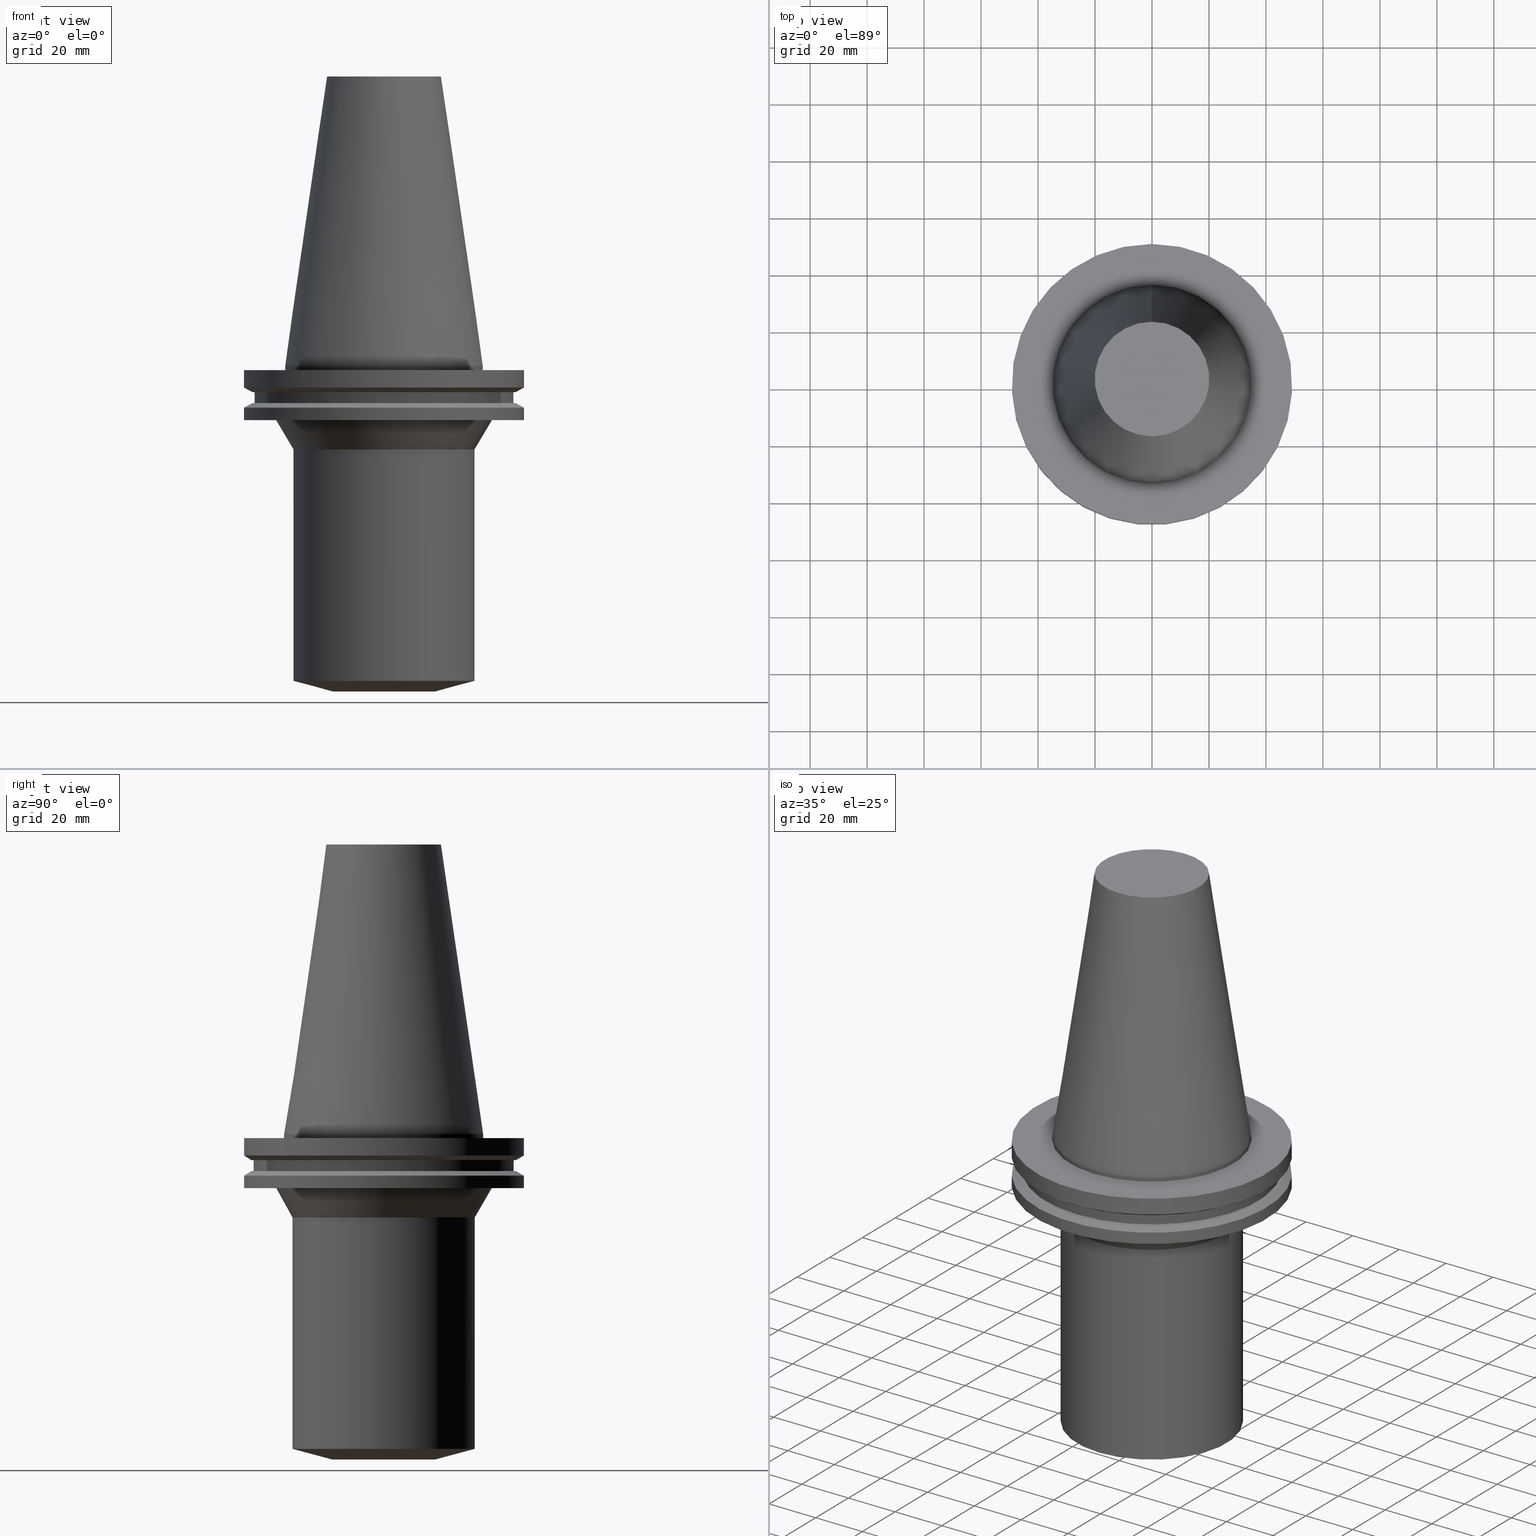
[diagram: canonical four-view strip — front | top / right | iso, engineering-drawing reading convention]
A machine part, canonical four-view strip (front | top / right | iso — engineering-drawing reading convention). The complete STEP part file that produces these views, byte-faithful:
ISO-10303-21;
HEADER;
FILE_DESCRIPTION((''),'1');
FILE_NAME('V:/01_Dxf_Field-HP\X2\FF71FF6FFF8CFF9F5916\X0\2013/BIGKAISER\X2\FF76FF80FF9BFF78FF9E63B28F095206\X0\_BKUS_201803/BCV50Y-BSL/BCV50Y-BSL1.250-4.5.stp','2018-03-13T06:54:01',(''),(''),'Spatial Interop R21 SP3','Kubotek KeyCreator 2011 V10.0.2 (22737)',' ');
FILE_SCHEMA(('automotive_design'));
ENDSEC;
DATA;
#1=MECHANICAL_DESIGN_GEOMETRIC_PRESENTATION_REPRESENTATION(' ',(#10,#11,#12,#13,#14,#15,#16,#17,#18,#19,#20,#21,#22,#23,#24,#25,#26,#27,#28,#29,#30,#31,#32,#33,#34,#35,#36,#37,#38,#39,#40,#41),#6);
#2=PRODUCT_DEFINITION_CONTEXT('',#42,'design');
#3=APPLICATION_PROTOCOL_DEFINITION('INTERNATIONAL STANDARD','automotive_design',1994,#42);
#4=PRODUCT_CATEGORY_RELATIONSHIP('NONE','NONE',#43,#44);
#5=SHAPE_DEFINITION_REPRESENTATION(#45,#46);
#6= (GEOMETRIC_REPRESENTATION_CONTEXT(3)GLOBAL_UNCERTAINTY_ASSIGNED_CONTEXT((#49))GLOBAL_UNIT_ASSIGNED_CONTEXT((#51,#52,#53))REPRESENTATION_CONTEXT('NONE','WORKSPACE'));
#10=STYLED_ITEM('',(#55,#56),#57);
#11=STYLED_ITEM('',(#58,#59),#60);
#12=STYLED_ITEM('',(#61),#62);
#13=STYLED_ITEM('',(#63,#64),#65);
#14=STYLED_ITEM('',(#66),#67);
#15=STYLED_ITEM('',(#68),#69);
#16=STYLED_ITEM('',(#70),#71);
#17=STYLED_ITEM('',(#72,#73),#74);
#18=STYLED_ITEM('',(#75),#76);
#19=STYLED_ITEM('',(#77),#78);
#20=STYLED_ITEM('',(#79),#80);
#21=STYLED_ITEM('',(#81,#82),#83);
#22=STYLED_ITEM('',(#84,#85),#86);
#23=STYLED_ITEM('',(#87,#88),#89);
#24=STYLED_ITEM('',(#90,#91),#92);
#25=STYLED_ITEM('',(#93),#94);
#26=STYLED_ITEM('',(#95,#96),#97);
#27=STYLED_ITEM('',(#98,#99),#100);
#28=STYLED_ITEM('',(#101),#102);
#29=STYLED_ITEM('',(#103,#104),#105);
#30=STYLED_ITEM('',(#106,#107),#108);
#31=STYLED_ITEM('',(#109),#110);
#32=STYLED_ITEM('',(#111),#112);
#33=STYLED_ITEM('',(#113),#114);
#34=STYLED_ITEM('',(#115),#116);
#35=STYLED_ITEM('',(#117),#118);
#36=STYLED_ITEM('',(#119,#120),#121);
#37=STYLED_ITEM('',(#122,#123),#124);
#38=STYLED_ITEM('',(#125,#126),#127);
#39=STYLED_ITEM('',(#128),#129);
#40=STYLED_ITEM('',(#130,#131),#132);
#41=STYLED_ITEM('',(#133,#134),#135);
#42=APPLICATION_CONTEXT(' ');
#43=PRODUCT_CATEGORY('part','NONE');
#44=PRODUCT_RELATED_PRODUCT_CATEGORY('detail',' ',(#136));
#45=PRODUCT_DEFINITION_SHAPE('NONE','NONE',#137);
#46=ADVANCED_BREP_SHAPE_REPRESENTATION('Unnamed[1]',(#121,#138),#6);
#49=UNCERTAINTY_MEASURE_WITH_UNIT(LENGTH_MEASURE(1.0E-006),#51,'','');
#51= (CONVERSION_BASED_UNIT('MILLIMETRE',#141)LENGTH_UNIT()NAMED_UNIT(#144));
#52= (NAMED_UNIT(#146)PLANE_ANGLE_UNIT()SI_UNIT($,.RADIAN.));
#53= (NAMED_UNIT(#146)SOLID_ANGLE_UNIT()SI_UNIT($,.STERADIAN.));
#55=PRESENTATION_STYLE_ASSIGNMENT((#152));
#56=PRESENTATION_STYLE_ASSIGNMENT((#153));
#57=ADVANCED_FACE('Unnamed[1]',(#154,#155),#156,.T.);
#58=PRESENTATION_STYLE_ASSIGNMENT((#157));
#59=PRESENTATION_STYLE_ASSIGNMENT((#158));
#60=ADVANCED_FACE('Unnamed[1]',(#159,#160),#161,.T.);
#61=PRESENTATION_STYLE_ASSIGNMENT((#162));
#62=EDGE_CURVE('Unnamed[1]',#163,#163,#164,.T.);
#63=PRESENTATION_STYLE_ASSIGNMENT((#165));
#64=PRESENTATION_STYLE_ASSIGNMENT((#166));
#65=ADVANCED_FACE('Unnamed[1]',(#167,#168),#169,.T.);
#66=PRESENTATION_STYLE_ASSIGNMENT((#170));
#67=EDGE_CURVE('Unnamed[1]',#171,#171,#172,.T.);
#68=PRESENTATION_STYLE_ASSIGNMENT((#173));
#69=EDGE_CURVE('Unnamed[1]',#174,#174,#175,.T.);
#70=PRESENTATION_STYLE_ASSIGNMENT((#176));
#71=EDGE_CURVE('Unnamed[1]',#177,#177,#178,.T.);
#72=PRESENTATION_STYLE_ASSIGNMENT((#179));
#73=PRESENTATION_STYLE_ASSIGNMENT((#180));
#74=ADVANCED_FACE('Unnamed[1]',(#181,#182),#183,.T.);
#75=PRESENTATION_STYLE_ASSIGNMENT((#184));
#76=EDGE_CURVE('Unnamed[1]',#185,#185,#186,.T.);
#77=PRESENTATION_STYLE_ASSIGNMENT((#187));
#78=EDGE_CURVE('Unnamed[1]',#188,#188,#189,.T.);
#79=PRESENTATION_STYLE_ASSIGNMENT((#190));
#80=EDGE_CURVE('Unnamed[1]',#191,#191,#192,.T.);
#81=PRESENTATION_STYLE_ASSIGNMENT((#193));
#82=PRESENTATION_STYLE_ASSIGNMENT((#194));
#83=ADVANCED_FACE('Unnamed[1]',(#195),#196,.T.);
#84=PRESENTATION_STYLE_ASSIGNMENT((#197));
#85=PRESENTATION_STYLE_ASSIGNMENT((#198));
#86=ADVANCED_FACE('Unnamed[1]',(#199,#200),#201,.T.);
#87=PRESENTATION_STYLE_ASSIGNMENT((#202));
#88=PRESENTATION_STYLE_ASSIGNMENT((#203));
#89=ADVANCED_FACE('Unnamed[1]',(#204,#205),#206,.T.);
#90=PRESENTATION_STYLE_ASSIGNMENT((#207));
#91=PRESENTATION_STYLE_ASSIGNMENT((#208));
#92=ADVANCED_FACE('Unnamed[1]',(#209),#210,.T.);
#93=PRESENTATION_STYLE_ASSIGNMENT((#211));
#94=EDGE_CURVE('Unnamed[1]',#212,#212,#213,.T.);
#95=PRESENTATION_STYLE_ASSIGNMENT((#214));
#96=PRESENTATION_STYLE_ASSIGNMENT((#215));
#97=ADVANCED_FACE('Unnamed[1]',(#216,#217),#218,.T.);
#98=PRESENTATION_STYLE_ASSIGNMENT((#219));
#99=PRESENTATION_STYLE_ASSIGNMENT((#220));
#100=ADVANCED_FACE('Unnamed[1]',(#221,#222),#223,.T.);
#101=PRESENTATION_STYLE_ASSIGNMENT((#224));
#102=EDGE_CURVE('Unnamed[1]',#225,#225,#226,.T.);
#103=PRESENTATION_STYLE_ASSIGNMENT((#227));
#104=PRESENTATION_STYLE_ASSIGNMENT((#228));
#105=ADVANCED_FACE('Unnamed[1]',(#229,#230),#231,.T.);
#106=PRESENTATION_STYLE_ASSIGNMENT((#232));
#107=PRESENTATION_STYLE_ASSIGNMENT((#233));
#108=ADVANCED_FACE('Unnamed[1]',(#234,#235),#236,.T.);
#109=PRESENTATION_STYLE_ASSIGNMENT((#237));
#110=EDGE_CURVE('Unnamed[1]',#238,#238,#239,.T.);
#111=PRESENTATION_STYLE_ASSIGNMENT((#240));
#112=EDGE_CURVE('Unnamed[1]',#241,#241,#242,.T.);
#113=PRESENTATION_STYLE_ASSIGNMENT((#243));
#114=EDGE_CURVE('Unnamed[1]',#244,#244,#245,.T.);
#115=PRESENTATION_STYLE_ASSIGNMENT((#246));
#116=EDGE_CURVE('Unnamed[1]',#247,#247,#248,.T.);
#117=PRESENTATION_STYLE_ASSIGNMENT((#249));
#118=EDGE_CURVE('Unnamed[1]',#250,#250,#251,.T.);
#119=PRESENTATION_STYLE_ASSIGNMENT((#252));
#120=PRESENTATION_STYLE_ASSIGNMENT((#253));
#121=MANIFOLD_SOLID_BREP('Unnamed[1]',#254);
#122=PRESENTATION_STYLE_ASSIGNMENT((#255));
#123=PRESENTATION_STYLE_ASSIGNMENT((#256));
#124=ADVANCED_FACE('Unnamed[1]',(#257,#258),#259,.T.);
#125=PRESENTATION_STYLE_ASSIGNMENT((#260));
#126=PRESENTATION_STYLE_ASSIGNMENT((#261));
#127=ADVANCED_FACE('Unnamed[1]',(#262,#263),#264,.T.);
#128=PRESENTATION_STYLE_ASSIGNMENT((#265));
#129=EDGE_CURVE('Unnamed[1]',#266,#266,#267,.T.);
#130=PRESENTATION_STYLE_ASSIGNMENT((#268));
#131=PRESENTATION_STYLE_ASSIGNMENT((#269));
#132=ADVANCED_FACE('Unnamed[1]',(#270,#271),#272,.T.);
#133=PRESENTATION_STYLE_ASSIGNMENT((#273));
#134=PRESENTATION_STYLE_ASSIGNMENT((#274));
#135=ADVANCED_FACE('Unnamed[1]',(#275,#276),#277,.T.);
#136=PRODUCT('Unnamed[1]','Unnamed[1]','PART-Unnamed[1]-DESC',(#278));
#137=PRODUCT_DEFINITION('NONE','NONE',#279,#2);
#138=AXIS2_PLACEMENT_3D('',#280,#281,#282);
#141=LENGTH_MEASURE_WITH_UNIT(LENGTH_MEASURE(1.0),#283);
#144=DIMENSIONAL_EXPONENTS(1.0,0.0,0.0,0.0,0.0,0.0,0.0);
#146=DIMENSIONAL_EXPONENTS(0.0,0.0,0.0,0.0,0.0,0.0,0.0);
#152=SURFACE_STYLE_USAGE(.BOTH.,#284);
#153=CURVE_STYLE('',#285,POSITIVE_LENGTH_MEASURE(1000.0),#286);
#154=FACE_BOUND('',#287,.T.);
#155=FACE_BOUND('',#288,.T.);
#156=CONICAL_SURFACE('',#289,34.9589201295966,0.523598775598359);
#157=SURFACE_STYLE_USAGE(.BOTH.,#290);
#158=CURVE_STYLE('',#291,POSITIVE_LENGTH_MEASURE(1000.0),#292);
#159=FACE_BOUND('',#293,.T.);
#160=FACE_BOUND('',#294,.T.);
#161=CYLINDRICAL_SURFACE('',#295,32.0000000000091);
#162=CURVE_STYLE('',#296,POSITIVE_LENGTH_MEASURE(1000.0),#297);
#163=VERTEX_POINT('',#298);
#164=CIRCLE('',#299,32.0000000000184);
#165=SURFACE_STYLE_USAGE(.BOTH.,#300);
#166=CURVE_STYLE('',#301,POSITIVE_LENGTH_MEASURE(1000.0),#302);
#167=FACE_BOUND('',#303,.T.);
#168=FACE_BOUND('',#304,.T.);
#169=CYLINDRICAL_SURFACE('',#305,34.925);
#170=CURVE_STYLE('',#306,POSITIVE_LENGTH_MEASURE(1000.0),#307);
#171=VERTEX_POINT('',#308);
#172=CIRCLE('',#309,45.645);
#173=CURVE_STYLE('',#310,POSITIVE_LENGTH_MEASURE(1000.0),#311);
#174=VERTEX_POINT('',#312);
#175=CIRCLE('',#313,37.9178402591934);
#176=CURVE_STYLE('',#314,POSITIVE_LENGTH_MEASURE(1000.0),#315);
#177=VERTEX_POINT('',#316);
#178=CIRCLE('',#317,31.9999999999997);
#179=SURFACE_STYLE_USAGE(.BOTH.,#318);
#180=CURVE_STYLE('',#319,POSITIVE_LENGTH_MEASURE(1000.0),#320);
#181=FACE_BOUND('',#321,.T.);
#182=FACE_BOUND('',#322,.T.);
#183=CYLINDRICAL_SURFACE('',#323,49.2125);
#184=CURVE_STYLE('',#324,POSITIVE_LENGTH_MEASURE(1000.0),#325);
#185=VERTEX_POINT('',#326);
#186=CIRCLE('',#327,46.43053755);
#187=CURVE_STYLE('',#328,POSITIVE_LENGTH_MEASURE(1000.0),#329);
#188=VERTEX_POINT('',#330);
#189=CIRCLE('',#331,34.925);
#190=CURVE_STYLE('',#332,POSITIVE_LENGTH_MEASURE(1000.0),#333);
#191=VERTEX_POINT('',#334);
#192=CIRCLE('',#335,49.2125);
#193=SURFACE_STYLE_USAGE(.BOTH.,#336);
#194=CURVE_STYLE('',#337,POSITIVE_LENGTH_MEASURE(1000.0),#338);
#195=FACE_OUTER_BOUND('',#339,.T.);
#196=PLANE('',#340);
#197=SURFACE_STYLE_USAGE(.BOTH.,#341);
#198=CURVE_STYLE('',#342,POSITIVE_LENGTH_MEASURE(1000.0),#343);
#199=FACE_BOUND('',#344,.T.);
#200=FACE_OUTER_BOUND('',#345,.T.);
#201=PLANE('',#346);
#202=SURFACE_STYLE_USAGE(.BOTH.,#347);
#203=CURVE_STYLE('',#348,POSITIVE_LENGTH_MEASURE(1000.0),#349);
#204=FACE_BOUND('',#350,.T.);
#205=FACE_BOUND('',#351,.T.);
#206=CYLINDRICAL_SURFACE('',#352,45.645);
#207=SURFACE_STYLE_USAGE(.BOTH.,#353);
#208=CURVE_STYLE('',#354,POSITIVE_LENGTH_MEASURE(1000.0),#355);
#209=FACE_OUTER_BOUND('',#356,.T.);
#210=PLANE('',#357);
#211=CURVE_STYLE('',#358,POSITIVE_LENGTH_MEASURE(1000.0),#359);
#212=VERTEX_POINT('',#360);
#213=CIRCLE('',#361,49.2125);
#214=SURFACE_STYLE_USAGE(.BOTH.,#362);
#215=CURVE_STYLE('',#363,POSITIVE_LENGTH_MEASURE(1000.0),#364);
#216=FACE_BOUND('',#365,.T.);
#217=FACE_BOUND('',#366,.T.);
#218=CONICAL_SURFACE('',#367,47.821518775,1.04719755103024);
#219=SURFACE_STYLE_USAGE(.BOTH.,#368);
#220=CURVE_STYLE('',#369,POSITIVE_LENGTH_MEASURE(1000.0),#370);
#221=FACE_BOUND('',#371,.T.);
#222=FACE_BOUND('',#372,.T.);
#223=CYLINDRICAL_SURFACE('',#373,49.2125);
#224=CURVE_STYLE('',#374,POSITIVE_LENGTH_MEASURE(1000.0),#375);
#225=VERTEX_POINT('',#376);
#226=CIRCLE('',#377,20.1083333297217);
#227=SURFACE_STYLE_USAGE(.BOTH.,#378);
#228=CURVE_STYLE('',#379,POSITIVE_LENGTH_MEASURE(1000.0),#380);
#229=FACE_BOUND('',#381,.T.);
#230=FACE_BOUND('',#382,.T.);
#231=CONICAL_SURFACE('',#383,27.5166666648609,0.144812498273746);
#232=SURFACE_STYLE_USAGE(.BOTH.,#384);
#233=CURVE_STYLE('',#385,POSITIVE_LENGTH_MEASURE(1000.0),#386);
#234=FACE_BOUND('',#387,.T.);
#235=FACE_BOUND('',#388,.T.);
#236=CONICAL_SURFACE('',#389,47.821518775,1.04719755103023);
#237=CURVE_STYLE('',#390,POSITIVE_LENGTH_MEASURE(1000.0),#391);
#238=VERTEX_POINT('',#392);
#239=CIRCLE('',#393,45.645);
#240=CURVE_STYLE('',#394,POSITIVE_LENGTH_MEASURE(1000.0),#395);
#241=VERTEX_POINT('',#396);
#242=CIRCLE('',#397,49.2125);
#243=CURVE_STYLE('',#398,POSITIVE_LENGTH_MEASURE(1000.0),#399);
#244=VERTEX_POINT('',#400);
#245=CIRCLE('',#401,34.925);
#246=CURVE_STYLE('',#402,POSITIVE_LENGTH_MEASURE(1000.0),#403);
#247=VERTEX_POINT('',#404);
#248=CIRCLE('',#405,49.2125);
#249=CURVE_STYLE('',#406,POSITIVE_LENGTH_MEASURE(1000.0),#407);
#250=VERTEX_POINT('',#408);
#251=CIRCLE('',#409,18.0000000000002);
#252=SURFACE_STYLE_USAGE(.BOTH.,#410);
#253=CURVE_STYLE('',#411,POSITIVE_LENGTH_MEASURE(1000.0),#412);
#254=CLOSED_SHELL('',(#83,#105,#65,#132,#74,#97,#86,#89,#135,#108,#100,#124,#57,#60,#127,#92));
#255=SURFACE_STYLE_USAGE(.BOTH.,#413);
#256=CURVE_STYLE('',#414,POSITIVE_LENGTH_MEASURE(1000.0),#415);
#257=FACE_BOUND('',#416,.T.);
#258=FACE_OUTER_BOUND('',#417,.T.);
#259=PLANE('',#418);
#260=SURFACE_STYLE_USAGE(.BOTH.,#419);
#261=CURVE_STYLE('',#420,POSITIVE_LENGTH_MEASURE(1000.0),#421);
#262=FACE_BOUND('',#422,.T.);
#263=FACE_BOUND('',#423,.T.);
#264=CONICAL_SURFACE('',#424,25.0000000000093,1.30899693899575);
#265=CURVE_STYLE('',#425,POSITIVE_LENGTH_MEASURE(1000.0),#426);
#266=VERTEX_POINT('',#427);
#267=CIRCLE('',#428,46.43053755);
#268=SURFACE_STYLE_USAGE(.BOTH.,#429);
#269=CURVE_STYLE('',#430,POSITIVE_LENGTH_MEASURE(1000.0),#431);
#270=FACE_OUTER_BOUND('',#432,.T.);
#271=FACE_BOUND('',#433,.T.);
#272=PLANE('',#434);
#273=SURFACE_STYLE_USAGE(.BOTH.,#435);
#274=CURVE_STYLE('',#436,POSITIVE_LENGTH_MEASURE(1000.0),#437);
#275=FACE_OUTER_BOUND('',#438,.T.);
#276=FACE_BOUND('',#439,.T.);
#277=PLANE('',#440);
#278=PRODUCT_CONTEXT('',#42,'mechanical');
#279=PRODUCT_DEFINITION_FORMATION_WITH_SPECIFIED_SOURCE(' ','NONE',#136,.NOT_KNOWN.);
#280=CARTESIAN_POINT('',(0.0,0.0,0.0));
#281=DIRECTION('',(0.0,0.0,1.0));
#282=DIRECTION('',(1.0,0.0,0.0));
#283= (NAMED_UNIT(#144)LENGTH_UNIT()SI_UNIT(.MILLI.,.METRE.));
#284=SURFACE_SIDE_STYLE('',(#442));
#285=DRAUGHTING_PRE_DEFINED_CURVE_FONT('continuous');
#286=COLOUR_RGB('',0.0,1.0,0.0);
#287=EDGE_LOOP('',(#443));
#288=EDGE_LOOP('',(#444));
#289=AXIS2_PLACEMENT_3D('',#445,#446,#447);
#290=SURFACE_SIDE_STYLE('',(#448));
#291=DRAUGHTING_PRE_DEFINED_CURVE_FONT('continuous');
#292=COLOUR_RGB('',0.0,1.0,0.0);
#293=EDGE_LOOP('',(#449));
#294=EDGE_LOOP('',(#450));
#295=AXIS2_PLACEMENT_3D('',#451,#452,#453);
#296=DRAUGHTING_PRE_DEFINED_CURVE_FONT('continuous');
#297=COLOUR_RGB('',0.0,1.0,0.0);
#298=CARTESIAN_POINT('',(6.76915627253533E-015,32.0000000000184,-110.548711305958));
#299=AXIS2_PLACEMENT_3D('',#454,#455,#456);
#300=SURFACE_SIDE_STYLE('',(#457));
#301=DRAUGHTING_PRE_DEFINED_CURVE_FONT('continuous');
#302=COLOUR_RGB('',0.0,1.0,0.0);
#303=EDGE_LOOP('',(#458));
#304=EDGE_LOOP('',(#459));
#305=AXIS2_PLACEMENT_3D('',#460,#461,#462);
#306=DRAUGHTING_PRE_DEFINED_CURVE_FONT('continuous');
#307=COLOUR_RGB('',0.0,1.0,0.0);
#308=CARTESIAN_POINT('',(7.98469713044073E-016,45.645,-13.04));
#309=AXIS2_PLACEMENT_3D('',#463,#464,#465);
#310=DRAUGHTING_PRE_DEFINED_CURVE_FONT('continuous');
#311=COLOUR_RGB('',0.0,1.0,0.0);
#312=CARTESIAN_POINT('',(1.16647607618786E-015,37.9178402591934,-19.0500000000001));
#313=AXIS2_PLACEMENT_3D('',#466,#467,#468);
#314=DRAUGHTING_PRE_DEFINED_CURVE_FONT('continuous');
#315=COLOUR_RGB('',0.0,1.0,0.0);
#316=CARTESIAN_POINT('',(1.79410756075079E-015,31.9999999999997,-29.2999999999987));
#317=AXIS2_PLACEMENT_3D('',#469,#470,#471);
#318=SURFACE_SIDE_STYLE('',(#472));
#319=DRAUGHTING_PRE_DEFINED_CURVE_FONT('continuous');
#320=COLOUR_RGB('',0.0,1.0,0.0);
#321=EDGE_LOOP('',(#473));
#322=EDGE_LOOP('',(#474));
#323=AXIS2_PLACEMENT_3D('',#475,#476,#477);
#324=DRAUGHTING_PRE_DEFINED_CURVE_FONT('continuous');
#325=COLOUR_RGB('',0.0,1.0,0.0);
#326=CARTESIAN_POINT('',(7.98469713044073E-016,46.43053755,-13.04));
#327=AXIS2_PLACEMENT_3D('',#478,#479,#480);
#328=DRAUGHTING_PRE_DEFINED_CURVE_FONT('continuous');
#329=COLOUR_RGB('',0.0,1.0,0.0);
#330=CARTESIAN_POINT('',(9.18485099360511E-017,34.925,-1.5));
#331=AXIS2_PLACEMENT_3D('',#481,#482,#483);
#332=DRAUGHTING_PRE_DEFINED_CURVE_FONT('continuous');
#333=COLOUR_RGB('',0.0,1.0,0.0);
#334=CARTESIAN_POINT('',(1.16647607618785E-015,49.2125,-19.05));
#335=AXIS2_PLACEMENT_3D('',#484,#485,#486);
#336=SURFACE_SIDE_STYLE('',(#487));
#337=DRAUGHTING_PRE_DEFINED_CURVE_FONT('continuous');
#338=COLOUR_RGB('',0.0,1.0,0.0);
#339=EDGE_LOOP('',(#488));
#340=AXIS2_PLACEMENT_3D('',#489,#490,#491);
#341=SURFACE_SIDE_STYLE('',(#492));
#342=DRAUGHTING_PRE_DEFINED_CURVE_FONT('continuous');
#343=COLOUR_RGB('',0.0,1.0,0.0);
#344=EDGE_LOOP('',(#493));
#345=EDGE_LOOP('',(#494));
#346=AXIS2_PLACEMENT_3D('',#495,#496,#497);
#347=SURFACE_SIDE_STYLE('',(#498));
#348=DRAUGHTING_PRE_DEFINED_CURVE_FONT('continuous');
#349=COLOUR_RGB('',0.0,1.0,0.0);
#350=EDGE_LOOP('',(#499));
#351=EDGE_LOOP('',(#500));
#352=AXIS2_PLACEMENT_3D('',#501,#502,#503);
#353=SURFACE_SIDE_STYLE('',(#504));
#354=DRAUGHTING_PRE_DEFINED_CURVE_FONT('continuous');
#355=COLOUR_RGB('',0.0,1.0,0.0);
#356=EDGE_LOOP('',(#505));
#357=AXIS2_PLACEMENT_3D('',#506,#507,#508);
#358=DRAUGHTING_PRE_DEFINED_CURVE_FONT('continuous');
#359=COLOUR_RGB('',0.0,1.0,0.0);
#360=CARTESIAN_POINT('',(9.18485099360509E-017,49.2125,-1.49999999999999));
#361=AXIS2_PLACEMENT_3D('',#509,#510,#511);
#362=SURFACE_SIDE_STYLE('',(#512));
#363=DRAUGHTING_PRE_DEFINED_CURVE_FONT('continuous');
#364=COLOUR_RGB('',0.0,1.0,0.0);
#365=EDGE_LOOP('',(#513));
#366=EDGE_LOOP('',(#514));
#367=AXIS2_PLACEMENT_3D('',#515,#516,#517);
#368=SURFACE_SIDE_STYLE('',(#518));
#369=DRAUGHTING_PRE_DEFINED_CURVE_FONT('continuous');
#370=COLOUR_RGB('',0.0,1.0,0.0);
#371=EDGE_LOOP('',(#519));
#372=EDGE_LOOP('',(#520));
#373=AXIS2_PLACEMENT_3D('',#521,#522,#523);
#374=DRAUGHTING_PRE_DEFINED_CURVE_FONT('continuous');
#375=COLOUR_RGB('',0.0,1.0,0.0);
#376=CARTESIAN_POINT('',(-6.22120573966855E-015,20.1083333297217,101.6));
#377=AXIS2_PLACEMENT_3D('',#524,#525,#526);
#378=SURFACE_SIDE_STYLE('',(#527));
#379=DRAUGHTING_PRE_DEFINED_CURVE_FONT('continuous');
#380=COLOUR_RGB('',0.0,1.0,0.0);
#381=EDGE_LOOP('',(#528));
#382=EDGE_LOOP('',(#529));
#383=AXIS2_PLACEMENT_3D('',#530,#531,#532);
#384=SURFACE_SIDE_STYLE('',(#533));
#385=DRAUGHTING_PRE_DEFINED_CURVE_FONT('continuous');
#386=COLOUR_RGB('',0.0,1.0,0.0);
#387=EDGE_LOOP('',(#534));
#388=EDGE_LOOP('',(#535));
#389=AXIS2_PLACEMENT_3D('',#536,#537,#538);
#390=DRAUGHTING_PRE_DEFINED_CURVE_FONT('continuous');
#391=COLOUR_RGB('',0.0,1.0,0.0);
#392=CARTESIAN_POINT('',(5.63337527607782E-016,45.645,-9.2));
#393=AXIS2_PLACEMENT_3D('',#539,#540,#541);
#394=DRAUGHTING_PRE_DEFINED_CURVE_FONT('continuous');
#395=COLOUR_RGB('',0.0,1.0,0.0);
#396=CARTESIAN_POINT('',(8.96819062732941E-016,49.2125,-14.64616677));
#397=AXIS2_PLACEMENT_3D('',#542,#543,#544);
#398=DRAUGHTING_PRE_DEFINED_CURVE_FONT('continuous');
#399=COLOUR_RGB('',0.0,1.0,0.0);
#400=CARTESIAN_POINT('',(-4.30483861169435E-031,34.925,4.27707894602213E-015));
#401=AXIS2_PLACEMENT_3D('',#545,#546,#547);
#402=DRAUGHTING_PRE_DEFINED_CURVE_FONT('continuous');
#403=COLOUR_RGB('',0.0,1.0,0.0);
#404=CARTESIAN_POINT('',(4.64988177918915E-016,49.2125,-7.59383323));
#405=AXIS2_PLACEMENT_3D('',#548,#549,#550);
#406=DRAUGHTING_PRE_DEFINED_CURVE_FONT('continuous');
#407=COLOUR_RGB('',0.0,1.0,0.0);
#408=CARTESIAN_POINT('',(6.99885645712706E-015,18.0000000000002,-114.299999999999));
#409=AXIS2_PLACEMENT_3D('',#551,#552,#553);
#410=SURFACE_SIDE_STYLE('',(#554));
#411=DRAUGHTING_PRE_DEFINED_CURVE_FONT('continuous');
#412=COLOUR_RGB('',0.0,1.0,0.0);
#413=SURFACE_SIDE_STYLE('',(#555));
#414=DRAUGHTING_PRE_DEFINED_CURVE_FONT('continuous');
#415=COLOUR_RGB('',0.0,1.0,0.0);
#416=EDGE_LOOP('',(#556));
#417=EDGE_LOOP('',(#557));
#418=AXIS2_PLACEMENT_3D('',#558,#559,#560);
#419=SURFACE_SIDE_STYLE('',(#561));
#420=DRAUGHTING_PRE_DEFINED_CURVE_FONT('continuous');
#421=COLOUR_RGB('',0.0,1.0,0.0);
#422=EDGE_LOOP('',(#562));
#423=EDGE_LOOP('',(#563));
#424=AXIS2_PLACEMENT_3D('',#564,#565,#566);
#425=DRAUGHTING_PRE_DEFINED_CURVE_FONT('continuous');
#426=COLOUR_RGB('',0.0,1.0,0.0);
#427=CARTESIAN_POINT('',(5.63337527607782E-016,46.43053755,-9.2));
#428=AXIS2_PLACEMENT_3D('',#567,#568,#569);
#429=SURFACE_SIDE_STYLE('',(#570));
#430=DRAUGHTING_PRE_DEFINED_CURVE_FONT('continuous');
#431=COLOUR_RGB('',0.0,1.0,0.0);
#432=EDGE_LOOP('',(#571));
#433=EDGE_LOOP('',(#572));
#434=AXIS2_PLACEMENT_3D('',#573,#574,#575);
#435=SURFACE_SIDE_STYLE('',(#576));
#436=DRAUGHTING_PRE_DEFINED_CURVE_FONT('continuous');
#437=COLOUR_RGB('',0.0,1.0,0.0);
#438=EDGE_LOOP('',(#577));
#439=EDGE_LOOP('',(#578));
#440=AXIS2_PLACEMENT_3D('',#579,#580,#581);
#442=SURFACE_STYLE_FILL_AREA(#582);
#443=ORIENTED_EDGE('',*,*,#71,.F.);
#444=ORIENTED_EDGE('',*,*,#69,.T.);
#445=CARTESIAN_POINT('',(1.48029181846933E-015,2.96058363693865E-015,-24.1749999999994));
#446=DIRECTION('',(-6.12323399573677E-017,-1.22464679914735E-016,1.0));
#447=DIRECTION('',(-1.23259516440783E-032,1.0,1.22464679914735E-016));
#448=SURFACE_STYLE_FILL_AREA(#583);
#449=ORIENTED_EDGE('',*,*,#62,.F.);
#450=ORIENTED_EDGE('',*,*,#71,.T.);
#451=CARTESIAN_POINT('',(4.28163191664306E-015,8.56326383328612E-015,-69.9243556529785));
#452=DIRECTION('',(6.12323399573677E-017,1.22464679914735E-016,-1.0));
#453=DIRECTION('',(-1.23259516440783E-032,1.0,1.22464679914735E-016));
#454=CARTESIAN_POINT('',(6.76915627253533E-015,1.35383125450707E-014,-110.548711305958));
#455=DIRECTION('',(6.12323399573677E-017,1.22464679914735E-016,-1.0));
#456=DIRECTION('',(-1.23259516440783E-032,1.0,1.22464679914735E-016));
#457=SURFACE_STYLE_FILL_AREA(#584);
#458=ORIENTED_EDGE('',*,*,#78,.F.);
#459=ORIENTED_EDGE('',*,*,#114,.T.);
#460=CARTESIAN_POINT('',(4.59242549680257E-017,9.18485099360515E-017,-0.75));
#461=DIRECTION('',(6.12323399573677E-017,1.22464679914735E-016,-1.0));
#462=DIRECTION('',(-1.23259516440783E-032,1.0,1.22464679914735E-016));
#463=CARTESIAN_POINT('',(7.98469713044074E-016,1.59693942608815E-015,-13.04));
#464=DIRECTION('',(6.12323399573677E-017,1.22464679914735E-016,-1.0));
#465=DIRECTION('',(-1.23259516440783E-032,1.0,1.22464679914735E-016));
#466=CARTESIAN_POINT('',(1.16647607618786E-015,2.33295215237572E-015,-19.0500000000001));
#467=DIRECTION('',(6.12323399573677E-017,1.22464679914735E-016,-1.0));
#468=DIRECTION('',(-1.23259516440783E-032,1.0,1.22464679914735E-016));
#469=CARTESIAN_POINT('',(1.79410756075079E-015,3.58821512150159E-015,-29.2999999999987));
#470=DIRECTION('',(6.12323399573677E-017,1.22464679914735E-016,-1.0));
#471=DIRECTION('',(-1.23259516440783E-032,1.0,1.22464679914735E-016));
#472=SURFACE_STYLE_FILL_AREA(#585);
#473=ORIENTED_EDGE('',*,*,#116,.F.);
#474=ORIENTED_EDGE('',*,*,#94,.T.);
#475=CARTESIAN_POINT('',(2.78418343927483E-016,5.56836687854967E-016,-4.546916615));
#476=DIRECTION('',(6.12323399573677E-017,1.22464679914735E-016,-1.0));
#477=DIRECTION('',(-1.23259516440783E-032,1.0,1.22464679914735E-016));
#478=CARTESIAN_POINT('',(7.98469713044074E-016,1.59693942608815E-015,-13.04));
#479=DIRECTION('',(6.12323399573677E-017,1.22464679914735E-016,-1.0));
#480=DIRECTION('',(-1.23259516440783E-032,1.0,1.22464679914735E-016));
#481=CARTESIAN_POINT('',(9.18485099360515E-017,1.83697019872103E-016,-1.5));
#482=DIRECTION('',(6.12323399573677E-017,1.22464679914735E-016,-1.0));
#483=DIRECTION('',(-1.23259516440783E-032,1.0,1.22464679914735E-016));
#484=CARTESIAN_POINT('',(1.16647607618785E-015,2.33295215237571E-015,-19.05));
#485=DIRECTION('',(6.12323399573677E-017,1.22464679914735E-016,-1.0));
#486=DIRECTION('',(-1.23259516440783E-032,1.0,1.22464679914735E-016));
#487=SURFACE_STYLE_FILL_AREA(#586);
#488=ORIENTED_EDGE('',*,*,#102,.F.);
#489=CARTESIAN_POINT('',(-6.22120573966855E-015,10.0541666648608,101.6));
#490=DIRECTION('',(-6.12323399573677E-017,-1.22464679914735E-016,1.0));
#491=DIRECTION('',(1.23259516440783E-032,-1.0,-1.22464679914735E-016));
#492=SURFACE_STYLE_FILL_AREA(#587);
#493=ORIENTED_EDGE('',*,*,#110,.F.);
#494=ORIENTED_EDGE('',*,*,#129,.T.);
#495=CARTESIAN_POINT('',(5.63337527607782E-016,46.037768775,-9.2));
#496=DIRECTION('',(6.12323399573677E-017,1.22464679914735E-016,-1.0));
#497=DIRECTION('',(-1.23259516440783E-032,1.0,1.22464679914735E-016));
#498=SURFACE_STYLE_FILL_AREA(#588);
#499=ORIENTED_EDGE('',*,*,#67,.F.);
#500=ORIENTED_EDGE('',*,*,#110,.T.);
#501=CARTESIAN_POINT('',(6.80903620325929E-016,1.36180724065186E-015,-11.12));
#502=DIRECTION('',(6.12323399573677E-017,1.22464679914735E-016,-1.0));
#503=DIRECTION('',(-1.23259516440783E-032,1.0,1.22464679914735E-016));
#504=SURFACE_STYLE_FILL_AREA(#589);
#505=ORIENTED_EDGE('',*,*,#118,.T.);
#506=CARTESIAN_POINT('',(6.99885645712706E-015,9.00000000000009,-114.299999999999));
#507=DIRECTION('',(6.12323399573677E-017,1.22464679914735E-016,-1.0));
#508=DIRECTION('',(-1.23259516440783E-032,1.0,1.22464679914735E-016));
#509=CARTESIAN_POINT('',(9.18485099360515E-017,1.83697019872103E-016,-1.5));
#510=DIRECTION('',(6.12323399573677E-017,1.22464679914735E-016,-1.0));
#511=DIRECTION('',(-1.23259516440783E-032,1.0,1.22464679914735E-016));
#512=SURFACE_STYLE_FILL_AREA(#590);
#513=ORIENTED_EDGE('',*,*,#129,.F.);
#514=ORIENTED_EDGE('',*,*,#116,.T.);
#515=CARTESIAN_POINT('',(5.14162852763349E-016,1.0283257055267E-015,-8.39691661500001));
#516=DIRECTION('',(-6.12323399573677E-017,-1.22464679914735E-016,1.0));
#517=DIRECTION('',(-1.23259516440783E-032,1.0,1.22464679914735E-016));
#518=SURFACE_STYLE_FILL_AREA(#591);
#519=ORIENTED_EDGE('',*,*,#80,.F.);
#520=ORIENTED_EDGE('',*,*,#112,.T.);
#521=CARTESIAN_POINT('',(1.0316475694604E-015,2.0632951389208E-015,-16.848083385));
#522=DIRECTION('',(6.12323399573677E-017,1.22464679914735E-016,-1.0));
#523=DIRECTION('',(-1.23259516440783E-032,1.0,1.22464679914735E-016));
#524=CARTESIAN_POINT('',(-6.22120573966855E-015,-1.24424114793371E-014,101.6));
#525=DIRECTION('',(6.12323399573676E-017,1.22464679914735E-016,-1.0));
#526=DIRECTION('',(-1.23259516440783E-032,1.0,1.22464679914735E-016));
#527=SURFACE_STYLE_FILL_AREA(#592);
#528=ORIENTED_EDGE('',*,*,#114,.F.);
#529=ORIENTED_EDGE('',*,*,#102,.T.);
#530=CARTESIAN_POINT('',(-3.11060286983428E-015,-6.22120573966855E-015,50.8));
#531=DIRECTION('',(6.12323399573677E-017,1.22464679914735E-016,-1.0));
#532=DIRECTION('',(-1.23259516440783E-032,1.0,1.22464679914735E-016));
#533=SURFACE_STYLE_FILL_AREA(#593);
#534=ORIENTED_EDGE('',*,*,#112,.F.);
#535=ORIENTED_EDGE('',*,*,#76,.T.);
#536=CARTESIAN_POINT('',(8.47644387888508E-016,1.69528877577702E-015,-13.843083385));
#537=DIRECTION('',(6.12323399573677E-017,1.22464679914735E-016,-1.0));
#538=DIRECTION('',(-1.23259516440783E-032,1.0,1.22464679914735E-016));
#539=CARTESIAN_POINT('',(5.63337527607783E-016,1.12667505521557E-015,-9.2));
#540=DIRECTION('',(6.12323399573677E-017,1.22464679914735E-016,-1.0));
#541=DIRECTION('',(-1.23259516440783E-032,1.0,1.22464679914735E-016));
#542=CARTESIAN_POINT('',(8.96819062732942E-016,1.79363812546588E-015,-14.64616677));
#543=DIRECTION('',(6.12323399573677E-017,1.22464679914735E-016,-1.0));
#544=DIRECTION('',(-1.23259516440783E-032,1.0,1.22464679914735E-016));
#545=CARTESIAN_POINT('',(0.0,0.0,0.0));
#546=DIRECTION('',(6.12323399573677E-017,1.22464679914735E-016,-1.0));
#547=DIRECTION('',(-1.23259516440783E-032,1.0,1.22464679914735E-016));
#548=CARTESIAN_POINT('',(4.64988177918915E-016,9.29976355837831E-016,-7.59383323));
#549=DIRECTION('',(6.12323399573677E-017,1.22464679914735E-016,-1.0));
#550=DIRECTION('',(-1.23259516440783E-032,1.0,1.22464679914735E-016));
#551=CARTESIAN_POINT('',(6.99885645712706E-015,1.39977129142541E-014,-114.299999999999));
#552=DIRECTION('',(6.12323399573677E-017,1.22464679914735E-016,-1.0));
#553=DIRECTION('',(-1.23259516440783E-032,1.0,1.22464679914735E-016));
#554=SURFACE_STYLE_FILL_AREA(#594);
#555=SURFACE_STYLE_FILL_AREA(#595);
#556=ORIENTED_EDGE('',*,*,#69,.F.);
#557=ORIENTED_EDGE('',*,*,#80,.T.);
#558=CARTESIAN_POINT('',(1.16647607618786E-015,43.5651701295967,-19.05));
#559=DIRECTION('',(6.12323399573677E-017,6.09887844059959E-015,-1.0));
#560=DIRECTION('',(-3.78275750764224E-031,1.0,6.09887844059959E-015));
#561=SURFACE_STYLE_FILL_AREA(#596);
#562=ORIENTED_EDGE('',*,*,#118,.F.);
#563=ORIENTED_EDGE('',*,*,#62,.T.);
#564=CARTESIAN_POINT('',(6.88400636483119E-015,1.37680127296624E-014,-112.424355652979));
#565=DIRECTION('',(-6.12323399573677E-017,-1.22464679914735E-016,1.0));
#566=DIRECTION('',(-1.23259516440783E-032,1.0,1.22464679914735E-016));
#567=CARTESIAN_POINT('',(5.63337527607783E-016,1.12667505521557E-015,-9.2));
#568=DIRECTION('',(6.12323399573677E-017,1.22464679914735E-016,-1.0));
#569=DIRECTION('',(-1.23259516440783E-032,1.0,1.22464679914735E-016));
#570=SURFACE_STYLE_FILL_AREA(#597);
#571=ORIENTED_EDGE('',*,*,#94,.F.);
#572=ORIENTED_EDGE('',*,*,#78,.T.);
#573=CARTESIAN_POINT('',(9.1848509936051E-017,42.06875,-1.49999999999999));
#574=DIRECTION('',(-6.12323399573677E-017,-1.22464679914735E-016,1.0));
#575=DIRECTION('',(1.23259516440783E-032,-1.0,-1.22464679914735E-016));
#576=SURFACE_STYLE_FILL_AREA(#598);
#577=ORIENTED_EDGE('',*,*,#76,.F.);
#578=ORIENTED_EDGE('',*,*,#67,.T.);
#579=CARTESIAN_POINT('',(7.98469713044073E-016,46.037768775,-13.04));
#580=DIRECTION('',(-6.12323399573677E-017,-1.22464679914735E-016,1.0));
#581=DIRECTION('',(1.23259516440783E-032,-1.0,-1.22464679914735E-016));
#582=FILL_AREA_STYLE('',(#599));
#583=FILL_AREA_STYLE('',(#600));
#584=FILL_AREA_STYLE('',(#601));
#585=FILL_AREA_STYLE('',(#602));
#586=FILL_AREA_STYLE('',(#603));
#587=FILL_AREA_STYLE('',(#604));
#588=FILL_AREA_STYLE('',(#605));
#589=FILL_AREA_STYLE('',(#606));
#590=FILL_AREA_STYLE('',(#607));
#591=FILL_AREA_STYLE('',(#608));
#592=FILL_AREA_STYLE('',(#609));
#593=FILL_AREA_STYLE('',(#610));
#594=FILL_AREA_STYLE('',(#611));
#595=FILL_AREA_STYLE('',(#612));
#596=FILL_AREA_STYLE('',(#613));
#597=FILL_AREA_STYLE('',(#614));
#598=FILL_AREA_STYLE('',(#615));
#599=FILL_AREA_STYLE_COLOUR('',#616);
#600=FILL_AREA_STYLE_COLOUR('',#617);
#601=FILL_AREA_STYLE_COLOUR('',#618);
#602=FILL_AREA_STYLE_COLOUR('',#619);
#603=FILL_AREA_STYLE_COLOUR('',#620);
#604=FILL_AREA_STYLE_COLOUR('',#621);
#605=FILL_AREA_STYLE_COLOUR('',#622);
#606=FILL_AREA_STYLE_COLOUR('',#623);
#607=FILL_AREA_STYLE_COLOUR('',#624);
#608=FILL_AREA_STYLE_COLOUR('',#625);
#609=FILL_AREA_STYLE_COLOUR('',#626);
#610=FILL_AREA_STYLE_COLOUR('',#627);
#611=FILL_AREA_STYLE_COLOUR('',#628);
#612=FILL_AREA_STYLE_COLOUR('',#629);
#613=FILL_AREA_STYLE_COLOUR('',#630);
#614=FILL_AREA_STYLE_COLOUR('',#631);
#615=FILL_AREA_STYLE_COLOUR('',#632);
#616=COLOUR_RGB('',0.0,1.0,0.0);
#617=COLOUR_RGB('',0.0,1.0,0.0);
#618=COLOUR_RGB('',0.0,1.0,0.0);
#619=COLOUR_RGB('',0.0,1.0,0.0);
#620=COLOUR_RGB('',0.0,1.0,0.0);
#621=COLOUR_RGB('',0.0,1.0,0.0);
#622=COLOUR_RGB('',0.0,1.0,0.0);
#623=COLOUR_RGB('',0.0,1.0,0.0);
#624=COLOUR_RGB('',0.0,1.0,0.0);
#625=COLOUR_RGB('',0.0,1.0,0.0);
#626=COLOUR_RGB('',0.0,1.0,0.0);
#627=COLOUR_RGB('',0.0,1.0,0.0);
#628=COLOUR_RGB('',0.0,1.0,0.0);
#629=COLOUR_RGB('',0.0,1.0,0.0);
#630=COLOUR_RGB('',0.0,1.0,0.0);
#631=COLOUR_RGB('',0.0,1.0,0.0);
#632=COLOUR_RGB('',0.0,1.0,0.0);
ENDSEC;
END-ISO-10303-21;
